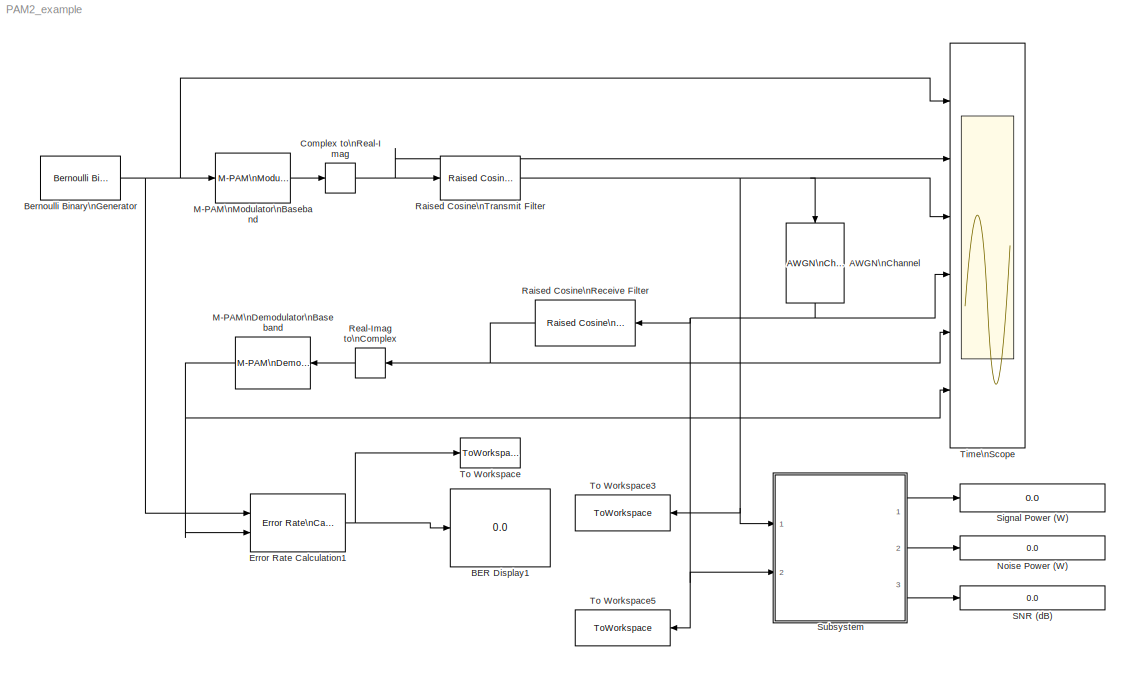
MODEL PAM2_example
KIND model
CONFIG PreLoadFcn = clc;\nclear all;\nclose all;\n%-------------------\nEh = 1;\nEsNo = 10;\n%-------------------\nRs =  1000;   % bps\nadc = 8;\n%-------------------\nrr = 0.35;\nGD = 5;        % Group delay\nNup = 4;       % Upsampling\n\nNsymbols = 1024;\nNsamples=Nsymbols*Nup;\nTdur = Nsymbols/Rs;
CONFIG StartFcn = %s = serial('COM1','BaudRate',19200,'Parity','even', 'Terminator', '');\n%fopen(s)\n\n
CONFIG StopFcn = %fclose(s)\n%delete(s)\n%clear s
BLOCK [Reference] AWGN\nChannel  REF=commchan3/AWGN\nChannel
  EbNodB = 10
  EsNodB = EsNo
  InputProcessing = Columns as channels (frame based)
  Ports = [1, 1]
  Ps = 1
  SID = 57
  SNRdB = 10
  SourceBlock = commchan3/AWGN\nChannel
  SourceType = AWGN Channel
  Tsym = 1/(Nup*Rs)
  UserData = DataTag0
  UserDataPersistent = on
  bitsPerSym = 1
  noiseMode = Signal to noise ratio  (Es/No)
  seed = 67
  variance = 1
BLOCK [Display] BER Display1
  Decimation = 1
  Lockdown = off
  Ports = [1]
  SID = 1
BLOCK [Reference] Bernoulli Binary\nGenerator  REF=commrandsrc2/Bernoulli Binary\nGenerator
  P = 0.5
  Ports = [0, 1]
  SID = 54
  SourceBlock = commrandsrc2/Bernoulli Binary\nGenerator
  SourceType = Bernoulli Binary Generator
  Ts = 1/Rs
  frameBased = off
  orient = off
  outDataType = double
  sampPerFrame = 1
  seed = 61
BLOCK [ComplexToRealImag] Complex to\nReal-Imag
  Output = Real
  Ports = [1, 1]
  SID = 55
BLOCK [Reference] Error Rate Calculation1  REF=commsink2/Error Rate\nCalculation
  N = 2*GD
  PMode = Port
  Ports = [2, 1]
  RsMode2 = off
  SID = 7
  SourceBlock = commsink2/Error Rate\nCalculation
  SourceType = Error Rate Calculation
  WsName = BER
  cp_mode = Entire frame
  maxBits = 1000
  numErr = 100
  st_delay = 20
  stop = off
  subframe = []
BLOCK [Reference] M-PAM\nDemodulator\nBaseband  REF=commdigbbndam3/M-PAM\nDemodulator\nBaseband
  AvgPow = 1
  Dec = Gray
  M = 2
  MinDist = 2
  OutType = Bit
  PeakPow = 1
  Ports = [1, 1]
  PowType = Min. distance between symbols
  SID = 63
  SourceBlock = commdigbbndam3/M-PAM\nDemodulator\nBaseband
  SourceType = M-PAM Demodulator Baseband
  denormFactorDTMode = Same word length as input
  denormFactorWordLen = 16
  outDtype1 = Inherit via internal rule
  outDtype2 = Inherit via internal rule
  prodOutDTMode = Inherit via internal rule
  prodOutOverflowMode = Wrap
  prodOutRoundingMode = Floor
  prodOutWordLen = 16
  sumDTMode = Inherit via internal rule
  sumWordLen = 16
BLOCK [Reference] M-PAM\nModulator\nBaseband  REF=commdigbbndam3/M-PAM\nModulator\nBaseband
  AvgPow = 1
  Enc = Gray
  InType = Bit
  M = 2
  MinDist = 2
  PeakPow = 1
  Ports = [1, 1]
  PowType = Min. distance between symbols
  SID = 64
  SourceBlock = commdigbbndam3/M-PAM\nModulator\nBaseband
  SourceType = M-PAM Modulator Baseband
  outDtype = double
  outFracLen = 15
  outFracLenMode = Best precision
  outUDDataType = sfix(16)
  outWordLen = 16
BLOCK [Display] Noise Power (W)
  Decimation = 32
  Lockdown = off
  Ports = [1]
  SID = 66
BLOCK [Reference] Raised Cosine\nReceive Filter  REF=commfilt2/Raised Cosine\nReceive Filter
  D = GD
  InputProcessing = Elements as channels (sample based)
  LockScale = off
  N = Nup
  Ports = [1, 1]
  R = rr
  SID = 43
  SourceBlock = commfilt2/Raised Cosine\nReceive Filter
  SourceType = Raised Cosine Receive Filter
  UserData = DataTag1
  UserDataPersistent = on
  accumFracLength = 30
  accumMode = Same as product output
  accumWordLength = 32
  checkCoeff = on
  checkGain = User-specified
  coeffFracLength = 15
  coeffMode = Same word length as input
  coeffWordLength = 16
  downFactor = Nup
  downOffset = 0
  filtType = Square root
  filterGain = 0.5
  framing = Allow multirate processing
  launchFVT = off
  outputFracLength = 15
  outputMode = Same as accumulator
  outputWordLength = 16
  overflowMode = off
  prodOutputFracLength = 30
  prodOutputMode = Same as input
  prodOutputWordLength = 32
  rateMode = Downsampling
  roundingMode = Floor
  sampMode = Mute
  saveAsFlag = 0
  variableName = rcRxFilt
BLOCK [Reference] Raised Cosine\nTransmit Filter  REF=commfilt2/Raised Cosine\nTransmit Filter
  D = GD
  InputProcessing = Elements as channels (sample based)
  LockScale = off
  N = Nup
  Ports = [1, 1]
  R = rr
  SID = 44
  SourceBlock = commfilt2/Raised Cosine\nTransmit Filter
  SourceType = Raised Cosine Transmit Filter
  UserData = DataTag2
  UserDataPersistent = on
  accumFracLength = 30
  accumMode = Inherit via internal rule
  accumWordLength = 32
  checkCoeff = on
  checkGain = User-specified
  coeffFracLength = 15
  coeffMode = Same word length as input
  coeffWordLength = 16
  filtType = Square root
  filterGain = 2
  framing = Allow multirate processing
  launchFVT = off
  outputFracLength = 15
  outputMode = Same as accumulator
  outputWordLength = 16
  overflowMode = off
  prodOutputFracLength = 30
  prodOutputMode = Inherit via internal rule
  prodOutputWordLength = 32
  roundingMode = Floor
  sampMode = Mute
  saveAsFlag = 0
  variableName = rcTxFilt
BLOCK [RealImagToComplex] Real-Imag to\nComplex
  Input = Real
  Ports = [1, 1]
  SID = 60
BLOCK [Display] SNR (dB)
  Decimation = 32
  Lockdown = off
  Ports = [1]
  SID = 65
BLOCK [Display] Signal Power (W)  
  Decimation = 32
  Lockdown = off
  Ports = [1]
  SID = 67
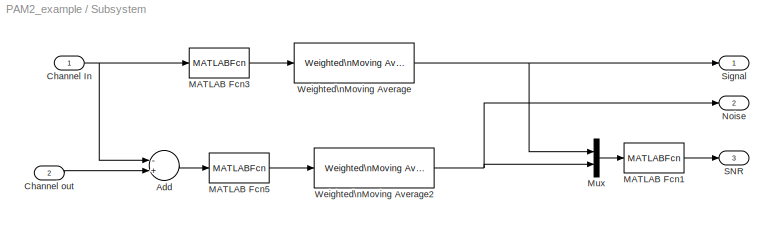
BLOCK [SubSystem] Subsystem
  FunctionWithSeparateData = off
  MaskHideContents = off
  MinAlgLoopOccurrences = off
  Opaque = off
  Ports = [2, 3]
  PropExecContextOutsideSubsystem = off
  RTWSystemCode = Auto
  RequestExecContextInheritance = off
  SID = 68
BLOCK [Sum] Subsystem/Add
  InputSameDT = off
  Inputs = -+
  OutDataTypeStr = Inherit: Inherit via internal rule
  Ports = [2, 1]
  SID = 72
  SaturateOnIntegerOverflow = off
BLOCK [Inport] Subsystem/Channel In
  IconDisplay = Port number
  SID = 69
BLOCK [Inport] Subsystem/Channel out
  IconDisplay = Port number
  Port = 2
  SID = 70
BLOCK [MATLABFcn] Subsystem/MATLAB Fcn1
  MATLABFcn = 10*log10(u(1)/u(2))
  Ports = [1, 1]
  SID = 73
BLOCK [MATLABFcn] Subsystem/MATLAB Fcn3
  MATLABFcn = abs(u)^2
  Ports = [1, 1]
  SID = 75
BLOCK [MATLABFcn] Subsystem/MATLAB Fcn5
  MATLABFcn = abs(u)^2
  Ports = [1, 1]
  SID = 76
BLOCK [Mux] Subsystem/Mux
  DisplayOption = bar
  Inputs = 2
  Ports = [2, 1]
  SID = 77
BLOCK [Outport] Subsystem/Noise
  IconDisplay = Port number
  Port = 2
  SID = 83
BLOCK [Outport] Subsystem/SNR
  IconDisplay = Port number
  Port = 3
  SID = 84
BLOCK [Outport] Subsystem/Signal
  IconDisplay = Port number
  SID = 82
BLOCK [Reference] Subsystem/Weighted\nMoving Average  REF=simulink_need_slupdate/Weighted\nMoving Average
  DoSatur = off
  GainDataType = sfix( 16 )
  GainDataTypeScalingMode = Inherit via internal rule
  GainDataTypeStr = Inherit: Inherit via internal rule
  GainScaling = 2^-10
  LockScale = off
  MatRadixGroup = Best Precision: Matrix-wise
  OutDataType = sfix(16)
  OutDataTypeStr = Inherit: Inherit via internal rule
  OutScaling = 2^-10
  OutputDataTypeScalingMode = Inherit via internal rule
  Ports = [1, 1]
  RndMeth = Floor
  SID = 79
  SourceBlock = simulink_need_slupdate/Weighted\nMoving Average
  SourceType = Weighted Moving Average
  mgainval = ones(1, Nsamples)/Nsamples
  samptime = -1
  vinit = 0.0
BLOCK [Reference] Subsystem/Weighted\nMoving Average2  REF=simulink_need_slupdate/Weighted\nMoving Average
  DoSatur = off
  GainDataType = sfix( 16 )
  GainDataTypeScalingMode = Inherit via internal rule
  GainDataTypeStr = Inherit: Inherit via internal rule
  GainScaling = 2^-10
  LockScale = off
  MatRadixGroup = Best Precision: Matrix-wise
  OutDataType = sfix(16)
  OutDataTypeStr = Inherit: Inherit via internal rule
  OutScaling = 2^-10
  OutputDataTypeScalingMode = Inherit via internal rule
  Ports = [1, 1]
  RndMeth = Floor
  SID = 81
  SourceBlock = simulink_need_slupdate/Weighted\nMoving Average
  SourceType = Weighted Moving Average
  mgainval = ones(1, Nsamples)/Nsamples
  samptime = -1
  vinit = 0.0
BLOCK [Scope] Time\nScope
  DataFormat = Structure
  Floating = off
  LimitDataPoints = off
  NumInputPorts = 6
  Ports = [6]
  SID = 46
  SampleTime = 0
  TimeRange = 2.5
  YMax = 1.1~4~2~2~2~1.5
  YMin = -0.1~-4~-2~-2~-2~-0.5
  ZoomMode = xonly
BLOCK [ToWorkspace] To Workspace
  MaxDataPoints = inf
  Ports = [1]
  SID = 47
  SampleTime = -1
  SaveFormat = Array
  VariableName = BER
BLOCK [ToWorkspace] To Workspace3
  MaxDataPoints = inf
  Ports = [1]
  SID = 88
  SampleTime = -1
  SaveFormat = Array
  VariableName = ChannelIn
BLOCK [ToWorkspace] To Workspace5
  MaxDataPoints = inf
  Ports = [1]
  SID = 87
  SampleTime = -1
  SaveFormat = Array
  VariableName = ChannelOut
NET AWGN\nChannel:1 -> Raised Cosine\nReceive Filter:1, Subsystem:2, Time\nScope:4, To Workspace5:1
NET Bernoulli Binary\nGenerator:1 -> Error Rate Calculation1:1, M-PAM\nModulator\nBaseband:1, Time\nScope:1
NET Complex to\nReal-Imag:1 -> Raised Cosine\nTransmit Filter:1, Time\nScope:2
NET Error Rate Calculation1:1 -> BER Display1:1, To Workspace:1
NET M-PAM\nDemodulator\nBaseband:1 -> Error Rate Calculation1:2, Time\nScope:6
LINE M-PAM\nModulator\nBaseband:1 -> Complex to\nReal-Imag:1
NET Raised Cosine\nReceive Filter:1 -> Real-Imag to\nComplex:1, Time\nScope:5
NET Raised Cosine\nTransmit Filter:1 -> AWGN\nChannel:1, Subsystem:1, Time\nScope:3, To Workspace3:1
LINE Real-Imag to\nComplex:1 -> M-PAM\nDemodulator\nBaseband:1
LINE Subsystem/Add:1 -> Subsystem/MATLAB Fcn5:1
NET Subsystem/Channel In:1 -> Subsystem/Add:1, Subsystem/MATLAB Fcn3:1
LINE Subsystem/Channel out:1 -> Subsystem/Add:2
LINE Subsystem/MATLAB Fcn1:1 -> Subsystem/SNR:1
LINE Subsystem/MATLAB Fcn3:1 -> Subsystem/Weighted\nMoving Average:1
LINE Subsystem/MATLAB Fcn5:1 -> Subsystem/Weighted\nMoving Average2:1
LINE Subsystem/Mux:1 -> Subsystem/MATLAB Fcn1:1
NET Subsystem/Weighted\nMoving Average2:1 -> Subsystem/Mux:2, Subsystem/Noise:1
NET Subsystem/Weighted\nMoving Average:1 -> Subsystem/Mux:1, Subsystem/Signal:1
LINE Subsystem:1 -> Signal Power (W)  :1
LINE Subsystem:2 -> Noise Power (W):1
LINE Subsystem:3 -> SNR (dB):1
note: NET lines group one-source signal fan-out (src -> all destinations, sorted); 1:1 wires keep LINE
